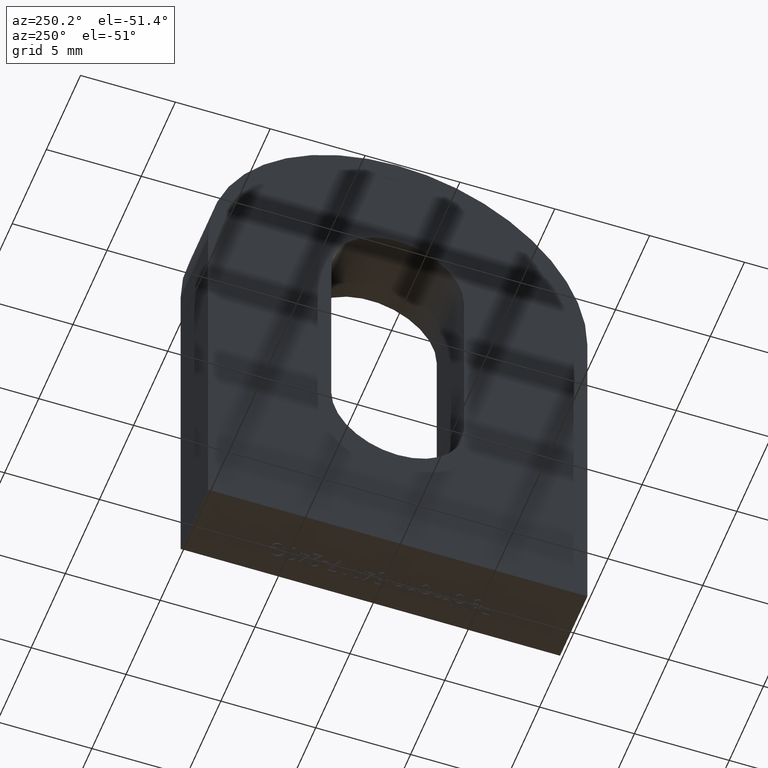
[diagram: clean part render]
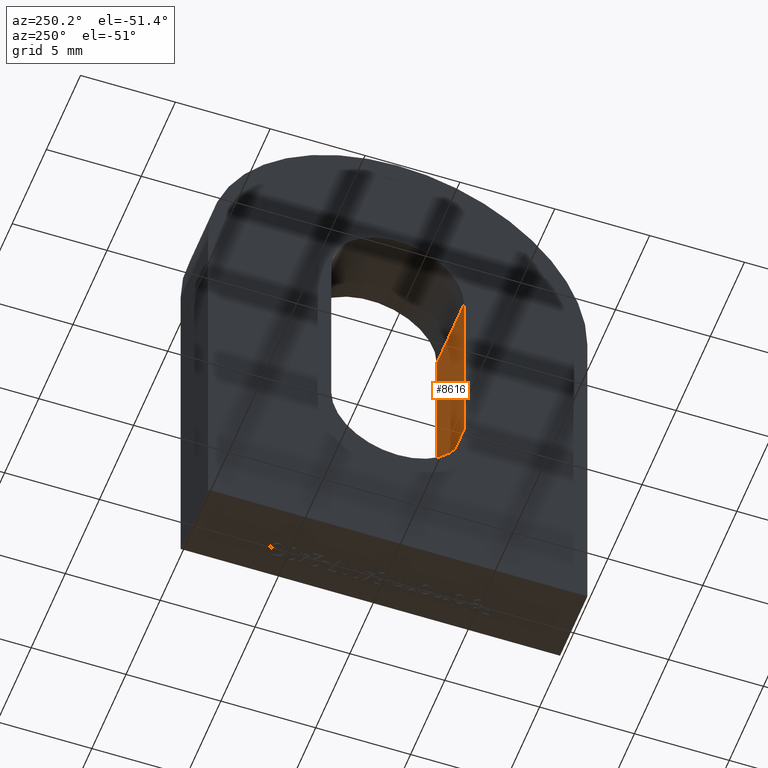
[diagram: same view with one face highlighted and labeled with its STEP entity id]
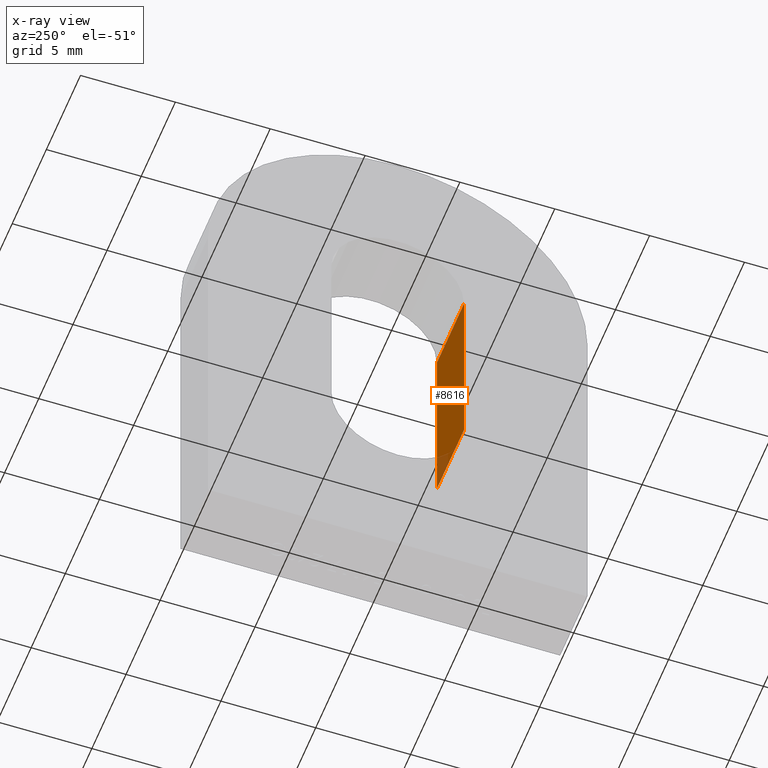
[diagram: x-ray of the same camera — body ghosted, the highlighted face saturated]
A machine part, auxiliary view. The second image highlights one B-rep face of the part: STEP entity #8616.
The next image is the same camera in x-ray: the body ghosted, the highlighted face saturated — about 7% of this face is hidden behind the body in this view.
In plain terms, the highlighted planar face has unit normal (0, -1, 0).
Its self-contained STEP definition (entity closure, byte-faithful):
#40 = CARTESIAN_POINT ( 'NONE',  ( -2.000000000000000000, -3.499999999999999600, 20.49999999999999600 ) ) ;
#591 = ORIENTED_EDGE ( 'NONE', *, *, #5661, .F. ) ;
#919 = CARTESIAN_POINT ( 'NONE',  ( -2.000000000000000000, -3.500000000000000000, 10.49999999999999500 ) ) ;
#1374 = LINE ( 'NONE', #7039, #11290 ) ;
#1434 = DIRECTION ( 'NONE',  ( 0.0000000000000000000, -4.336808689942017100E-017, -1.000000000000000000 ) ) ;
#2160 = VERTEX_POINT ( 'NONE', #4803 ) ;
#2375 = CARTESIAN_POINT ( 'NONE',  ( -2.000000000000000000, -3.499999999999999600, 20.49999999999999600 ) ) ;
#2422 = CARTESIAN_POINT ( 'NONE',  ( 2.000000000000000000, -3.500000000000000000, 10.49999999999999500 ) ) ;
#2565 = ORIENTED_EDGE ( 'NONE', *, *, #4331, .T. ) ;
#3028 = LINE ( 'NONE', #9768, #10257 ) ;
#3157 = LINE ( 'NONE', #2375, #10090 ) ;
#3232 = DIRECTION ( 'NONE',  ( 0.0000000000000000000, -1.000000000000000000, 4.336808689942017100E-017 ) ) ;
#4077 = PLANE ( 'NONE',  #4576 ) ;
#4194 = DIRECTION ( 'NONE',  ( 0.0000000000000000000, -4.336808689942017100E-017, -1.000000000000000000 ) ) ;
#4331 = EDGE_CURVE ( 'NONE', #7375, #2160, #1374, .T. ) ;
#4576 = AXIS2_PLACEMENT_3D ( 'NONE', #10405, #3232, #4194 ) ;
#4730 = VERTEX_POINT ( 'NONE', #2422 ) ;
#4803 = CARTESIAN_POINT ( 'NONE',  ( 2.000000000000000000, -3.499999999999999600, 20.49999999999999600 ) ) ;
#5661 = EDGE_CURVE ( 'NONE', #11142, #4730, #10105, .T. ) ;
#5795 = EDGE_CURVE ( 'NONE', #2160, #4730, #3028, .T. ) ;
#6417 = DIRECTION ( 'NONE',  ( 1.000000000000000000, -0.0000000000000000000, -0.0000000000000000000 ) ) ;
#6596 = VECTOR ( 'NONE', #6417, 1000.000000000000000 ) ;
#7039 = CARTESIAN_POINT ( 'NONE',  ( -2.000000000000000000, -3.499999999999999600, 20.49999999999999600 ) ) ;
#7375 = VERTEX_POINT ( 'NONE', #40 ) ;
#7403 = CARTESIAN_POINT ( 'NONE',  ( -2.000000000000000000, -3.500000000000000000, 10.49999999999999500 ) ) ;
#8188 = ORIENTED_EDGE ( 'NONE', *, *, #5795, .T. ) ;
#8310 = EDGE_CURVE ( 'NONE', #7375, #11142, #3157, .T. ) ;
#8616 = ADVANCED_FACE ( 'NONE', ( #11245 ), #4077, .F. ) ;
#8887 = DIRECTION ( 'NONE',  ( 0.0000000000000000000, -4.336808689942017100E-017, -1.000000000000000000 ) ) ;
#9190 = ORIENTED_EDGE ( 'NONE', *, *, #8310, .F. ) ;
#9768 = CARTESIAN_POINT ( 'NONE',  ( 2.000000000000000000, -3.499999999999999600, 20.49999999999999600 ) ) ;
#10090 = VECTOR ( 'NONE', #1434, 1000.000000000000000 ) ;
#10105 = LINE ( 'NONE', #919, #6596 ) ;
#10257 = VECTOR ( 'NONE', #8887, 1000.000000000000000 ) ;
#10405 = CARTESIAN_POINT ( 'NONE',  ( -2.000000000000000000, -3.499999999999999600, 20.49999999999999600 ) ) ;
#10518 = DIRECTION ( 'NONE',  ( 1.000000000000000000, -0.0000000000000000000, -0.0000000000000000000 ) ) ;
#10732 = EDGE_LOOP ( 'NONE', ( #8188, #591, #9190, #2565 ) ) ;
#11142 = VERTEX_POINT ( 'NONE', #7403 ) ;
#11245 = FACE_OUTER_BOUND ( 'NONE', #10732, .T. ) ;
#11290 = VECTOR ( 'NONE', #10518, 1000.000000000000000 ) ;